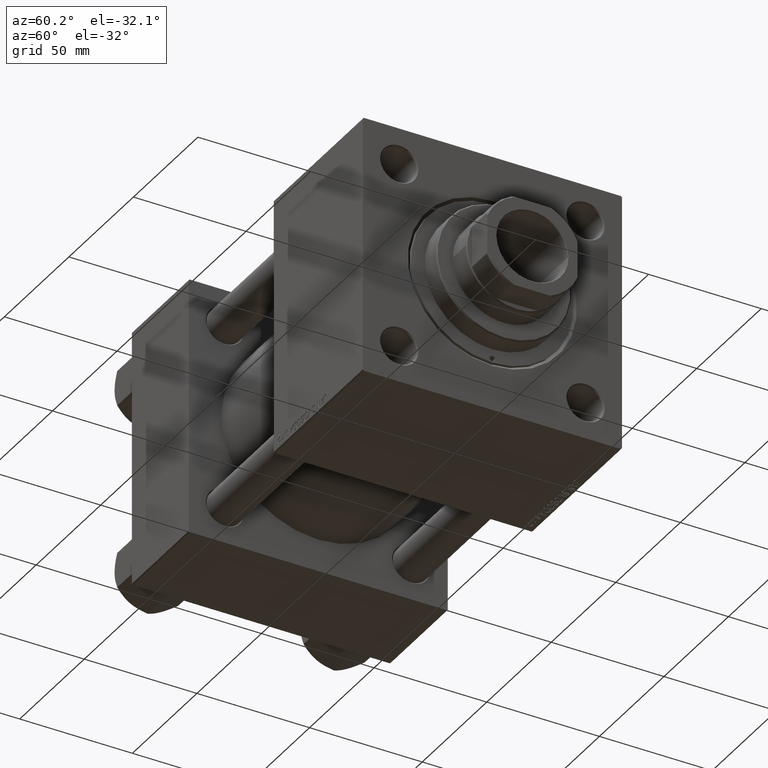
[diagram: clean part render]
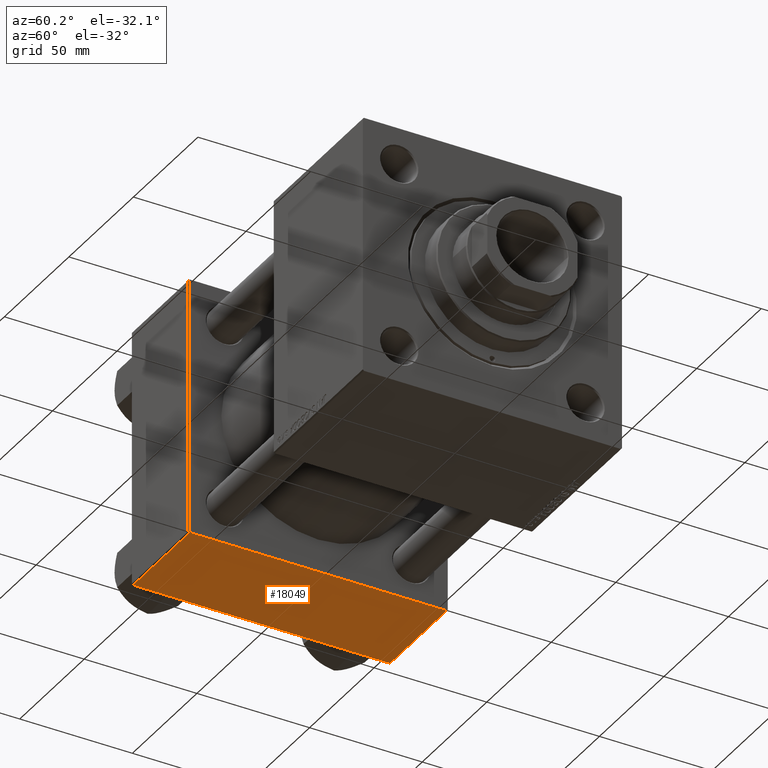
[diagram: same view with one face highlighted and labeled with its STEP entity id]
A machine part, auxiliary view. The second image highlights one B-rep face of the part: STEP entity #18049.
In plain terms, the highlighted planar face has unit normal (0, 0, -1).
Its self-contained STEP definition (entity closure, byte-faithful):
#853 = AXIS2_PLACEMENT_3D ( 'NONE', #898, #16551, #28374 ) ;
#898 = CARTESIAN_POINT ( 'NONE',  ( 44.00000000000000000, 57.49999999999999289, -57.49999999999999289 ) ) ;
#1923 = CARTESIAN_POINT ( 'NONE',  ( 0.000000000000000000, 57.00000000000002132, -57.49999999999999289 ) ) ;
#2912 = VECTOR ( 'NONE', #46094, 1000.000000000000000 ) ;
#3172 = ORIENTED_EDGE ( 'NONE', *, *, #28525, .T. ) ;
#3546 = LINE ( 'NONE', #26682, #38636 ) ;
#7594 = VERTEX_POINT ( 'NONE', #1923 ) ;
#7897 = LINE ( 'NONE', #19729, #45492 ) ;
#9861 = CARTESIAN_POINT ( 'NONE',  ( 0.000000000000000000, -57.00000000000000711, -57.50000000000000711 ) ) ;
#11253 = VERTEX_POINT ( 'NONE', #9861 ) ;
#12658 = VERTEX_POINT ( 'NONE', #24172 ) ;
#12689 = FACE_OUTER_BOUND ( 'NONE', #19283, .T. ) ;
#15672 = VECTOR ( 'NONE', #31019, 1000.000000000000000 ) ;
#16551 = DIRECTION ( 'NONE',  ( 0.000000000000000000, 1.206764157201257045E-16, -1.000000000000000000 ) ) ;
#18049 = ADVANCED_FACE ( 'NONE', ( #12689 ), #48412, .T. ) ;
#19283 = EDGE_LOOP ( 'NONE', ( #27895, #30657, #47296, #3172 ) ) ;
#19729 = CARTESIAN_POINT ( 'NONE',  ( 0.000000000000000000, -57.00000000000000711, -57.50000000000000711 ) ) ;
#22217 = CARTESIAN_POINT ( 'NONE',  ( 44.00000000000000000, 57.00000000000002132, -57.49999999999999289 ) ) ;
#22580 = EDGE_CURVE ( 'NONE', #7594, #34287, #3546, .T. ) ;
#24172 = CARTESIAN_POINT ( 'NONE',  ( 44.00000000000000000, -57.00000000000000711, -57.50000000000000711 ) ) ;
#26294 = CARTESIAN_POINT ( 'NONE',  ( 44.00000000000000000, 57.49999999999999289, -57.49999999999999289 ) ) ;
#26682 = CARTESIAN_POINT ( 'NONE',  ( 44.00000000000000000, 57.00000000000002132, -57.49999999999999289 ) ) ;
#27895 = ORIENTED_EDGE ( 'NONE', *, *, #46998, .F. ) ;
#28374 = DIRECTION ( 'NONE',  ( 0.000000000000000000, 1.000000000000000000, 1.206764157201257045E-16 ) ) ;
#28525 = EDGE_CURVE ( 'NONE', #12658, #11253, #7897, .T. ) ;
#30657 = ORIENTED_EDGE ( 'NONE', *, *, #22580, .T. ) ;
#31019 = DIRECTION ( 'NONE',  ( 0.000000000000000000, -1.000000000000000000, -1.206764157201257045E-16 ) ) ;
#31920 = EDGE_CURVE ( 'NONE', #34287, #12658, #42743, .T. ) ;
#34287 = VERTEX_POINT ( 'NONE', #22217 ) ;
#38636 = VECTOR ( 'NONE', #42375, 1000.000000000000000 ) ;
#42375 = DIRECTION ( 'NONE',  ( 1.000000000000000000, 0.000000000000000000, 0.000000000000000000 ) ) ;
#42743 = LINE ( 'NONE', #26294, #2912 ) ;
#43369 = DIRECTION ( 'NONE',  ( -1.000000000000000000, 0.000000000000000000, 0.000000000000000000 ) ) ;
#45492 = VECTOR ( 'NONE', #43369, 1000.000000000000000 ) ;
#46094 = DIRECTION ( 'NONE',  ( 0.000000000000000000, -1.000000000000000000, -1.206764157201257045E-16 ) ) ;
#46201 = CARTESIAN_POINT ( 'NONE',  ( 0.000000000000000000, 57.49999999999999289, -57.49999999999999289 ) ) ;
#46955 = LINE ( 'NONE', #46201, #15672 ) ;
#46998 = EDGE_CURVE ( 'NONE', #7594, #11253, #46955, .T. ) ;
#47296 = ORIENTED_EDGE ( 'NONE', *, *, #31920, .T. ) ;
#48412 = PLANE ( 'NONE',  #853 ) ;